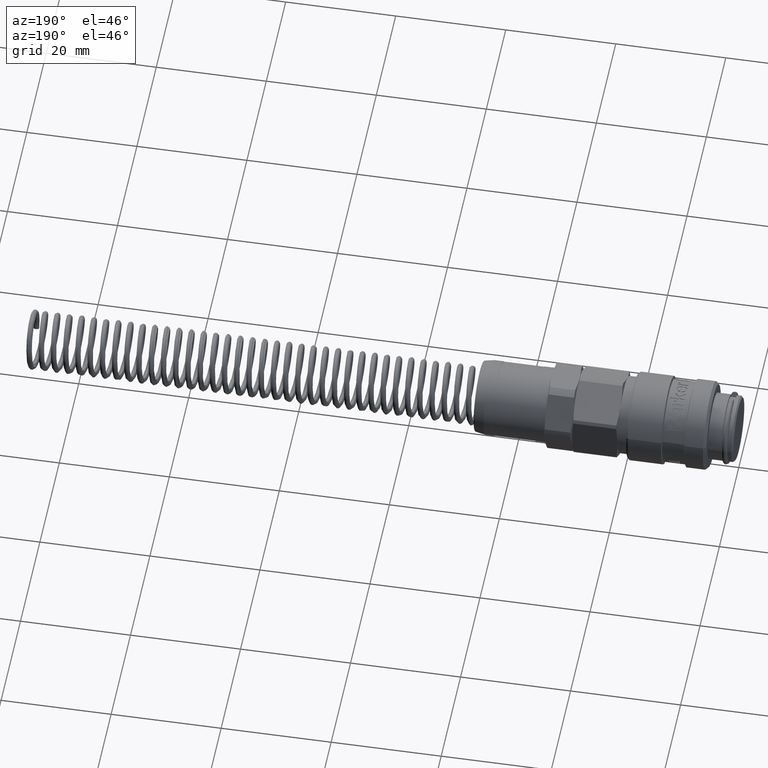
[diagram: clean part render]
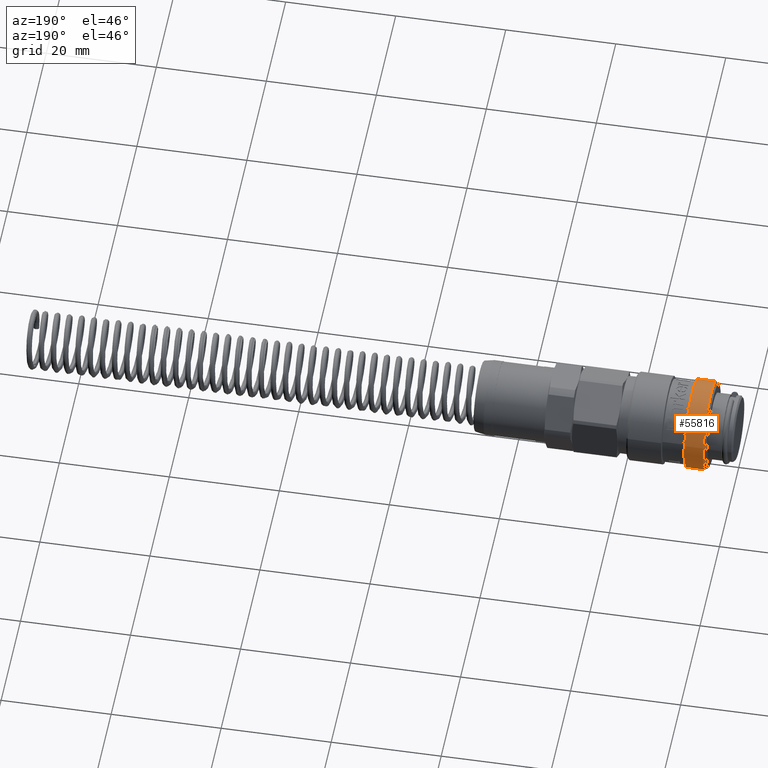
[diagram: same view with one face highlighted and labeled with its STEP entity id]
A machine part, auxiliary view. The second image highlights one B-rep face of the part: STEP entity #55816.
In plain terms, the highlighted cylindrical surface (bore or boss wall) has radius 8 mm, axis along (1, 0, 0).
Its self-contained STEP definition (entity closure, byte-faithful):
#55785=CARTESIAN_POINT('',(5.099999999999999,7.755687851516365,1.961964818706362));
#55786=VERTEX_POINT('',#55785);
#55787=CARTESIAN_POINT('',(5.099999999999999,0.0,0.0));
#55788=DIRECTION('',(-1.0,0.0,0.0));
#55789=DIRECTION('',(0.0,-0.969460981439546,-0.245245602338295));
#55790=AXIS2_PLACEMENT_3D('',#55787,#55788,#55789);
#55791=CIRCLE('',#55790,8.0);
#55792=EDGE_CURVE('',#55786,#55786,#55791,.T.);
#55797=CARTESIAN_POINT('',(6.533012701892218,0.0,0.0));
#55798=DIRECTION('',(1.0,0.0,0.0));
#55799=DIRECTION('',(0.0,0.969460981439546,0.245245602338295));
#55800=AXIS2_PLACEMENT_3D('',#55797,#55798,#55799);
#55801=CYLINDRICAL_SURFACE('',#55800,8.0);
#55802=CARTESIAN_POINT('',(8.466025403784437,7.755687851516365,1.961964818706363));
#55803=VERTEX_POINT('',#55802);
#55804=CARTESIAN_POINT('',(8.466025403784437,0.0,0.0));
#55805=DIRECTION('',(1.0,0.0,0.0));
#55806=DIRECTION('',(0.0,0.969460981439546,0.245245602338295));
#55807=AXIS2_PLACEMENT_3D('',#55804,#55805,#55806);
#55808=CIRCLE('',#55807,8.0);
#55809=EDGE_CURVE('',#55803,#55803,#55808,.T.);
#55810=ORIENTED_EDGE('',*,*,#55809,.F.);
#55811=EDGE_LOOP('',(#55810));
#55812=FACE_OUTER_BOUND('',#55811,.T.);
#55813=ORIENTED_EDGE('',*,*,#55792,.F.);
#55814=EDGE_LOOP('',(#55813));
#55815=FACE_BOUND('',#55814,.T.);
#55816=ADVANCED_FACE('',(#55812,#55815),#55801,.T.);